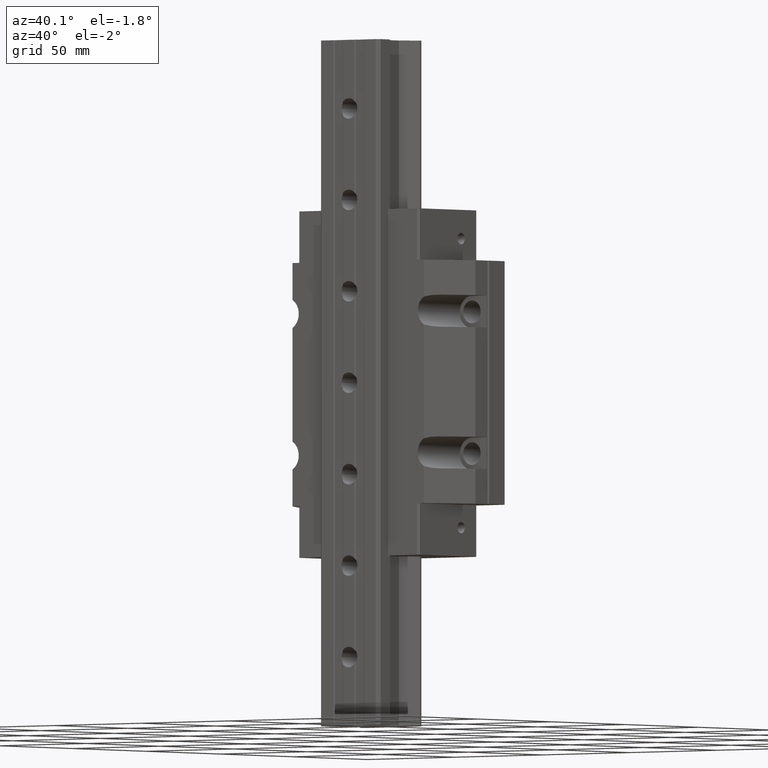
[diagram: clean part render]
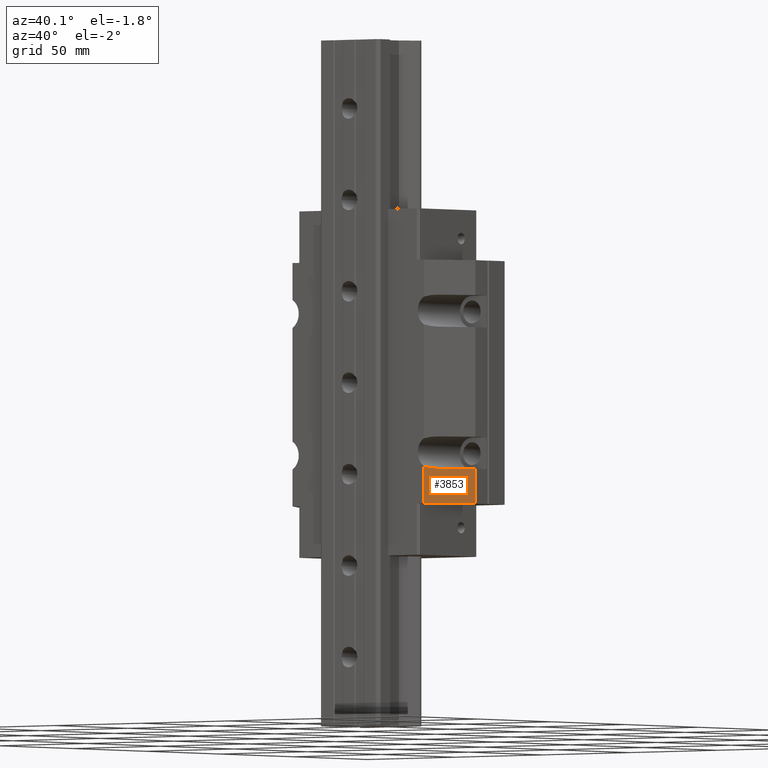
[diagram: same view with one face highlighted and labeled with its STEP entity id]
A machine part, auxiliary view. The second image highlights one B-rep face of the part: STEP entity #3853.
In plain terms, the highlighted planar face has unit normal (0.866, -0.5, 0).
Its self-contained STEP definition (entity closure, byte-faithful):
#25=DIRECTION('',(5.000000000012E-1,8.660254037838E-1,0.E0));
#26=VECTOR('',#25,2.392280463958E1);
#27=CARTESIAN_POINT('',(3.753859768018E1,6.499999999972E0,-5.325E1));
#28=LINE('',#27,#26);
#420=DIRECTION('',(-9.617074466171E-13,-1.725183605106E-12,-1.E0));
#421=VECTOR('',#420,1.616570102802E1);
#422=CARTESIAN_POINT('',(3.753859768020E1,6.5E0,-3.708429897198E1));
#423=LINE('',#422,#421);
#466=CARTESIAN_POINT('',(4.1E1,1.249532468331E1,-3.8E1));
#467=CARTESIAN_POINT('',(3.982491518690E1,1.046001808383E1,-3.8E1));
#468=CARTESIAN_POINT('',(3.866884546562E1,8.457646589482E0,-3.772730522865E1));
#469=CARTESIAN_POINT('',(3.753859768020E1,6.499999999997E0,-3.708429897198E1));
#1355=DIRECTION('',(-5.000000000012E-1,-8.660254037838E-1,0.E0));
#1356=VECTOR('',#1355,1.699999999996E1);
#1357=CARTESIAN_POINT('',(4.95E1,2.721775654760E1,-3.8E1));
#1358=LINE('',#1357,#1356);
#1363=DIRECTION('',(0.E0,1.817125684895E-14,-1.E0));
#1364=VECTOR('',#1363,1.525E1);
#1365=CARTESIAN_POINT('',(4.95E1,2.721775654760E1,-3.8E1));
#1366=LINE('',#1365,#1364);
#1505=CARTESIAN_POINT('',(3.753859768018E1,6.499999999972E0,-5.325E1));
#1506=VERTEX_POINT('',#1505);
#1507=CARTESIAN_POINT('',(4.95E1,2.721775654760E1,-5.325E1));
#1508=VERTEX_POINT('',#1507);
#1775=CARTESIAN_POINT('',(4.95E1,2.721775654760E1,-3.8E1));
#1776=VERTEX_POINT('',#1775);
#1783=CARTESIAN_POINT('',(4.1E1,1.249532468331E1,-3.8E1));
#1784=VERTEX_POINT('',#1783);
#1785=CARTESIAN_POINT('',(3.753859768020E1,6.5E0,-3.708429897198E1));
#1786=VERTEX_POINT('',#1785);
#3841=CARTESIAN_POINT('',(3.753859768020E1,6.5E0,-5.325E1));
#3842=DIRECTION('',(8.660254037838E-1,-5.000000000012E-1,0.E0));
#3843=DIRECTION('',(5.000000000012E-1,8.660254037838E-1,0.E0));
#3844=AXIS2_PLACEMENT_3D('',#3841,#3842,#3843);
#3845=PLANE('',#3844);
#3846=ORIENTED_EDGE('',*,*,#3833,.F.);
#3847=ORIENTED_EDGE('',*,*,#2547,.T.);
#3848=ORIENTED_EDGE('',*,*,#1969,.F.);
#3849=ORIENTED_EDGE('',*,*,#2459,.F.);
#3850=ORIENTED_EDGE('',*,*,#2495,.F.);
#3851=EDGE_LOOP('',(#3846,#3847,#3848,#3849,#3850));
#3852=FACE_OUTER_BOUND('',#3851,.F.);
#3853=ADVANCED_FACE('',(#3852),#3845,.T.);
#470=B_SPLINE_CURVE_WITH_KNOTS('',3,(#466,#467,#468,#469),.UNSPECIFIED.,.F.,.F.,
(4,4),(0.E0,1.E0),.UNSPECIFIED.);
#1969=EDGE_CURVE('',#1506,#1508,#28,.T.);
#2459=EDGE_CURVE('',#1786,#1506,#423,.T.);
#2495=EDGE_CURVE('',#1784,#1786,#470,.T.);
#2547=EDGE_CURVE('',#1776,#1508,#1366,.T.);
#3833=EDGE_CURVE('',#1776,#1784,#1358,.T.);